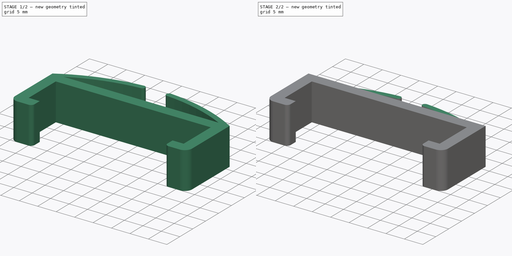
[diagram: build sequence overview — one tinted view per stage of 2, left to right]
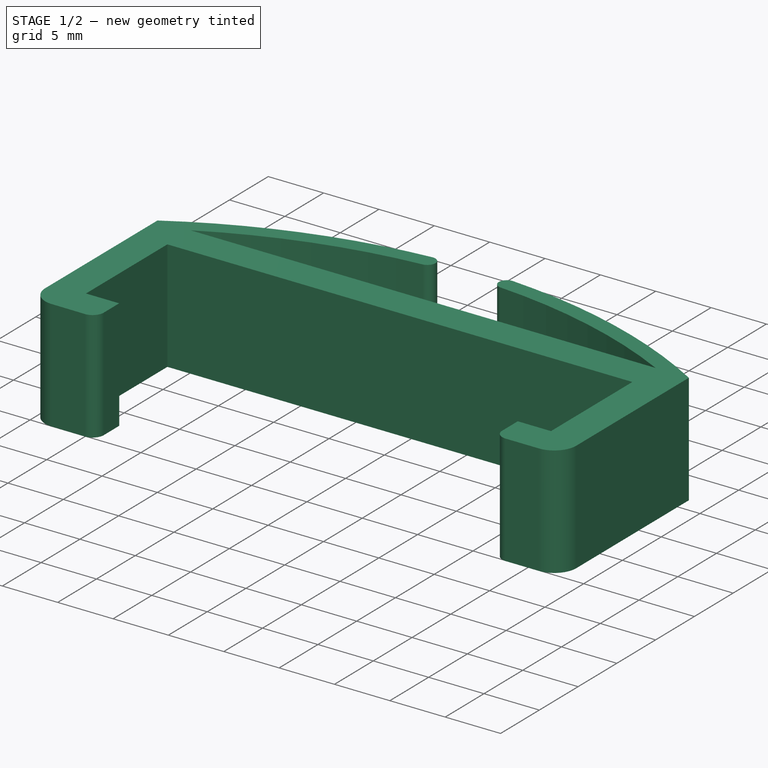
[diagram: stage 1 of 2 — iso view after this stage's code; geometry added in this stage tinted green]
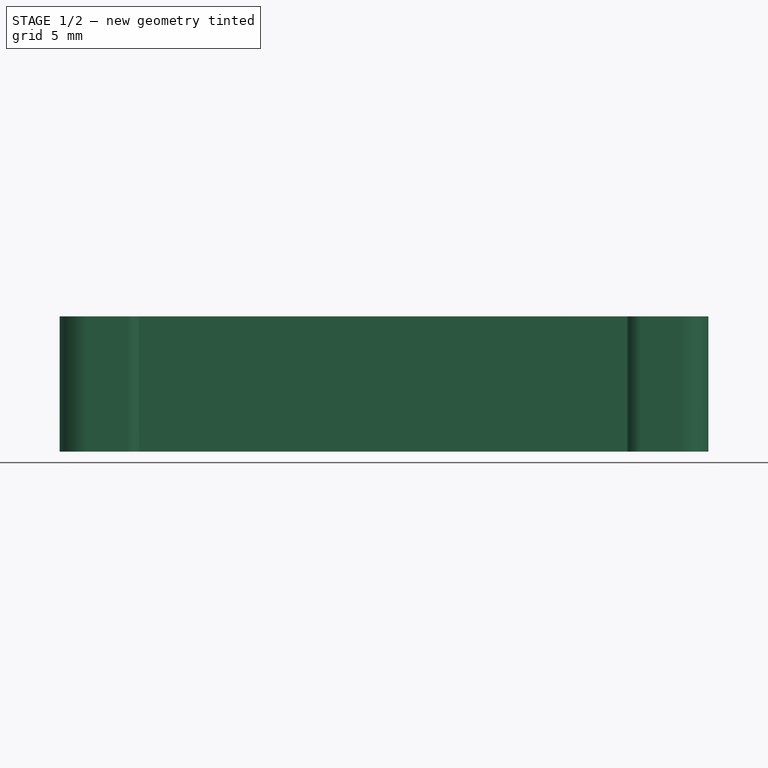
[diagram: stage 1 of 2 — front view after this stage's code; geometry added in this stage tinted green]
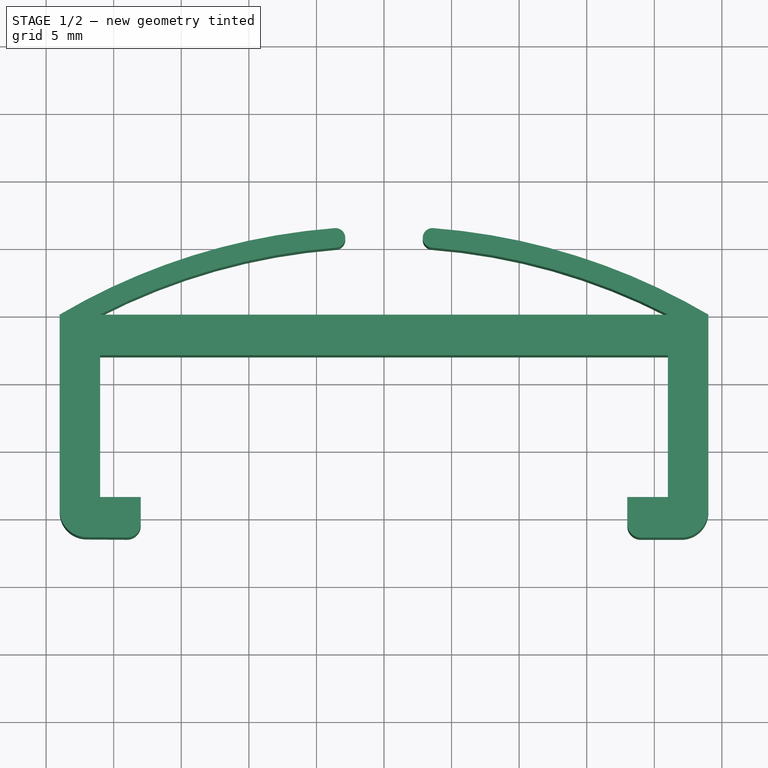
[diagram: stage 1 of 2 — top view after this stage's code; geometry added in this stage tinted green]
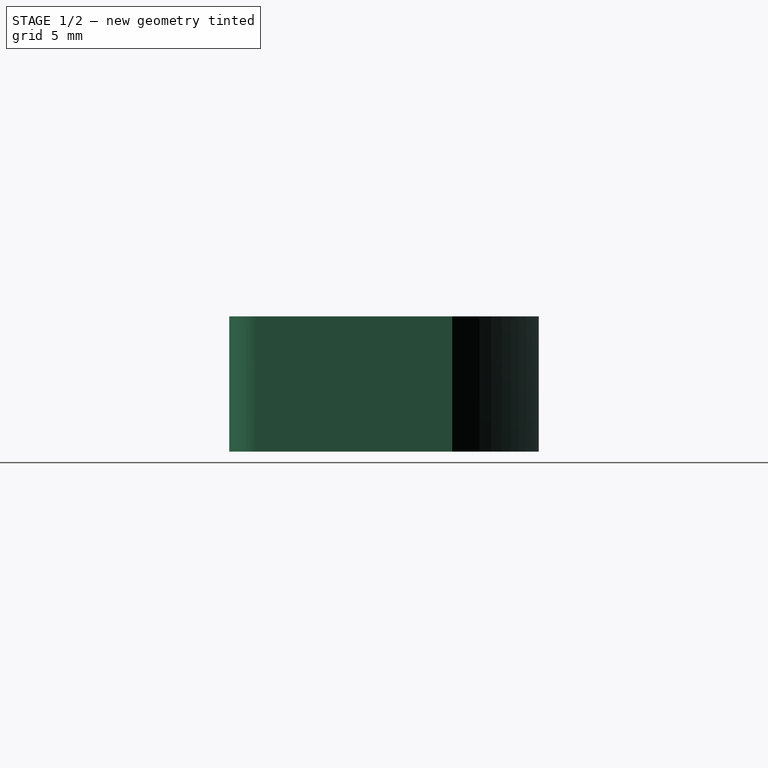
[diagram: stage 1 of 2 — right view after this stage's code; geometry added in this stage tinted green]
FCSTD DOCUMENT  (FreeCAD 0.20R27319 (Git))
Label: Friction Plate
License: All rights reserved
LicenseURL: http://en.wikipedia.org/wiki/All_rights_reserved
objects: Sketcher::SketchObject×2, PartDesign::Pad×1, PartDesign::Pocket×1, PartDesign::Body×1
note: 7 computed .brp shape members not serialized (recipe doc carries the construction recipe); baked Part::Feature solids carry a one-line shape summary decoded from their .brp

FEATURE [Sketcher::SketchObject] Sketch
  FullyConstrained = false
  MapMode = 5
  Support = -> [XY_Plane]
  sketch-geometry (30):
    g0: LineSegment StartX=-24 StartY=-7.1e-15 StartZ=0 EndX=-21 EndY=0 EndZ=0
    g1: LineSegment StartX=24 StartY=-7.1e-15 StartZ=0 EndX=24 EndY=-14.5 EndZ=0
    g2: LineSegment StartX=22 StartY=-16.5 StartZ=0 EndX=19 EndY=-16.5 EndZ=0
    g3: LineSegment StartX=18 StartY=-15.5 StartZ=0 EndX=18 EndY=-13.5 EndZ=0
    g4: LineSegment StartX=18 StartY=-13.5 StartZ=0 EndX=21 EndY=-13.5 EndZ=0
    g5: LineSegment StartX=21 StartY=-13.5 StartZ=0 EndX=21 EndY=-3 EndZ=0
    g6: LineSegment StartX=21 StartY=-3 StartZ=0 EndX=-21 EndY=-3 EndZ=0
    g7: LineSegment StartX=-21 StartY=-3 StartZ=0 EndX=-21 EndY=-13.5 EndZ=0
    g8: LineSegment StartX=-21 StartY=-13.5 StartZ=0 EndX=-18 EndY=-13.5 EndZ=0
    g9: LineSegment StartX=-18 StartY=-13.5 StartZ=0 EndX=-18 EndY=-15.4928 EndZ=0
    g10: LineSegment StartX=-19.0072 StartY=-16.4927 StartZ=0 EndX=-22.0144 EndY=-16.4711 EndZ=0
    g11: LineSegment StartX=-24 StartY=-14.4711 StartZ=0 EndX=-24 EndY=-7.1e-15 EndZ=0
    g12: ArcOfCircle CenterX=1.2e-15 CenterY=-40.7613 CenterZ=0 NormalX=0 NormalY=0 NormalZ=1 AngleXU=0 Radius=47.3021 StartAngle=1.03866 EndAngle=1.49364
    g13: ArcOfCircle CenterX=1.2e-15 CenterY=-40.7613 CenterZ=0 NormalX=0 NormalY=0 NormalZ=1 AngleXU=0 Radius=45.8529 StartAngle=1.09507 EndAngle=1.49484
    g14: LineSegment StartX=21 StartY=0 StartZ=0 EndX=24 EndY=-7.1e-15 EndZ=0
    g15: LineSegment StartX=-21 StartY=0 StartZ=0 EndX=21 EndY=0 EndZ=0
    g16: LineSegment StartX=0 StartY=0 StartZ=0 EndX=0 EndY=6.4 EndZ=0
    g17: LineSegment StartX=-3.64622 StartY=6.4 StartZ=0 EndX=3.64622 EndY=6.4 EndZ=0
    g18: ArcOfCircle CenterX=1.2e-15 CenterY=-40.7613 CenterZ=0 NormalX=0 NormalY=0 NormalZ=1 AngleXU=0 Radius=47.3021 StartAngle=1.64796 EndAngle=2.10293
    g19: ArcOfCircle CenterX=1.2e-15 CenterY=-40.7613 CenterZ=0 NormalX=0 NormalY=0 NormalZ=1 AngleXU=0 Radius=45.8529 StartAngle=1.64675 EndAngle=2.04653
    g20: ArcOfCircle CenterX=-22 CenterY=-14.4711 CenterZ=0 NormalX=0 NormalY=0 NormalZ=1 AngleXU=0 Radius=2 StartAngle=3.14159 EndAngle=4.70518
    g21: GeomPoint X=-24 Y=-16.4567 Z=0
    g22: ArcOfCircle CenterX=22 CenterY=-14.5 CenterZ=0 NormalX=0 NormalY=0 NormalZ=1 AngleXU=0 Radius=2 StartAngle=4.71239 EndAngle=6.28319
    g23: GeomPoint X=24 Y=-16.5 Z=0
    g24: ArcOfCircle CenterX=-19 CenterY=-15.4928 CenterZ=0 NormalX=0 NormalY=0 NormalZ=1 AngleXU=0 Radius=1 StartAngle=4.70518 EndAngle=6.28319
    g25: GeomPoint X=-18 Y=-16.5 Z=0
    g26: ArcOfCircle CenterX=19 CenterY=-15.5 CenterZ=0 NormalX=0 NormalY=0 NormalZ=1 AngleXU=0 Radius=1 StartAngle=3.14159 EndAngle=4.71239
    g27: GeomPoint X=18 Y=-16.5 Z=0
    g28: ArcOfCircle CenterX=-3.59028 CenterY=5.67649 CenterZ=0 NormalX=0 NormalY=0 NormalZ=1 AngleXU=0 Radius=0.725669 StartAngle=4.86576 EndAngle=7.93114
    g29: ArcOfCircle CenterX=3.59028 CenterY=5.67649 CenterZ=0 NormalX=0 NormalY=0 NormalZ=1 AngleXU=0 Radius=0.725669 StartAngle=1.49364 EndAngle=4.55901
  constraints (76):
    c: Coincident(g14,g1)
    c: Horizontal(g2)
    c: Vertical(g3)
    c: Coincident(g3,g4)
    c: Coincident(g4,g5)
    c: Coincident(g5,g6)
    c: Coincident(g6,g7)
    c: Coincident(g7,g8)
    c: Horizontal(g8)
    c: Coincident(g8,g9)
    c: Vertical(g9)
    c: Coincident(g11,g0)
    c: Vertical(g11)
    c: Vertical(g1)
    c: Horizontal(g4)
    c: Symmetric(g25,g27,g-2)
    c: Symmetric(g6,g5,g-2)
    c: Vertical(g7)
    c: Vertical(g5)
    c: Distance(g6) = 42
    c: Distance(g4) = 3
    c: DistanceX(g4,g23) = 3
    c: Symmetric(g0,g14,g-2)
    c: Distance(g7) = 10.5
    c: Distance(g9,g25) = 3
    c: DistanceY(g6,g0) = 3
    c: PointOnObject(g-1,g0)
    c: Coincident(g18,g0)
    c: Coincident(g12,g14)
    c: Coincident(g13,g12)
    c: Coincident(g0,g19)
    c: Coincident(g14,g13)
    c: Coincident(g15,g19)
    c: Coincident(g15,g13)
    c: Horizontal(g15)
    c: Equal(g15,g6)
    c: PointOnObject(g-1,g15)
    c: Coincident(g16,g-1)
    c: Vertical(g16)
    c: Distance(g16) = 6.4
    c: Horizontal(g17)
    c: PointOnObject(g17,g12)
    c: Symmetric(g19,g13,g-2)
    c: Equal(g12,g18)
    c: Coincident(g12,g18)
    c: PointOnObject(g18,g17)
    c: Coincident(g13,g19)
    c: PointOnObject(g16,g17)
    c: PointOnObject(g21,g10)
    c: PointOnObject(g21,g11)
    c: Tangent(g10,g20) = 1.5708
    c: Tangent(g11,g20) = 1.5708
    c: PointOnObject(g23,g1)
    c: PointOnObject(g23,g2)
    c: Tangent(g1,g22) = 1.5708
    c: Tangent(g2,g22) = 1.5708
    c: Equal(g20,g22)
    c: Radius(g22) = 2
    c: PointOnObject(g25,g9)
    c: PointOnObject(g25,g10)
    c: Tangent(g9,g24) = 1.5708
    c: Tangent(g10,g24) = 1.5708
    c: PointOnObject(g27,g2)
    c: PointOnObject(g27,g3)
    c: Tangent(g2,g26) = 1.5708
    c: Tangent(g3,g26) = 1.5708
    c: Equal(g24,g26)
    c: Radius(g26) = 1
    c: Coincident(g28,g19)
    c: Coincident(g29,g12)
    c: Coincident(g29,g13)
    c: Equal(g28,g29)
    c: Tangent(g28,g18) = -1.5708
    c: Coincident(g12,g17)
    c: Coincident(g17,g18)
    c: Coincident(g17,g28)
FEATURE [PartDesign::Pad] Pad
  Direction = (0,0,1)
  Length = 10
  Length2 = 10
  Profile = -> Sketch
  ReferenceAxis = -> Sketch [N_Axis]
  Type = 0
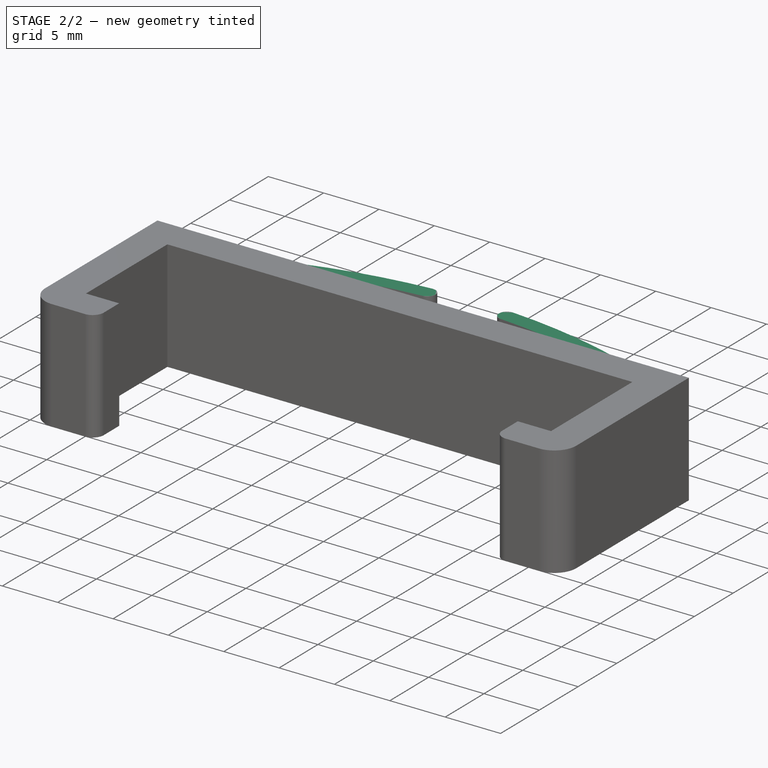
[diagram: stage 2 of 2 — iso view after this stage's code; geometry added in this stage tinted green]
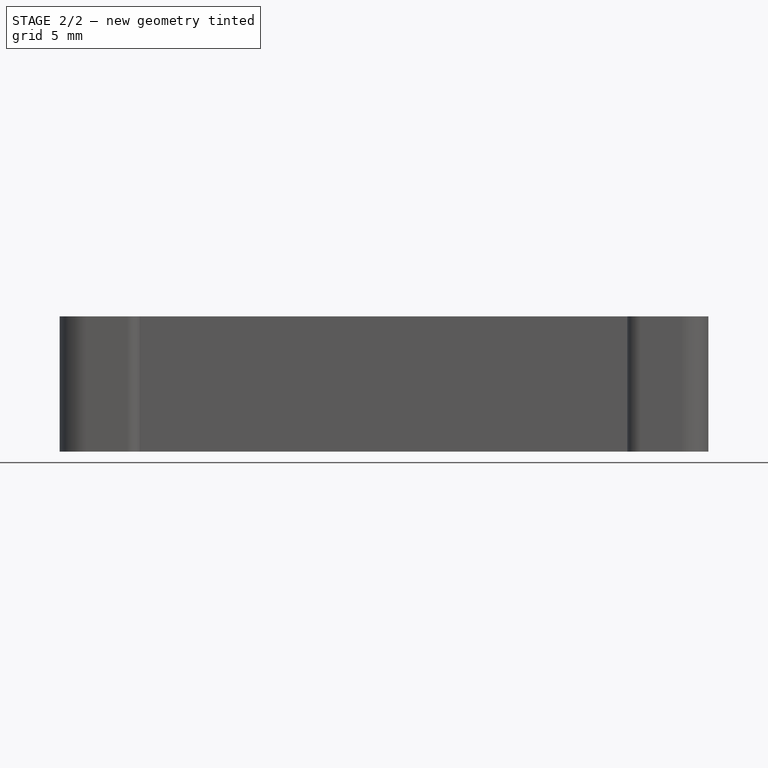
[diagram: stage 2 of 2 — front view after this stage's code; geometry added in this stage tinted green]
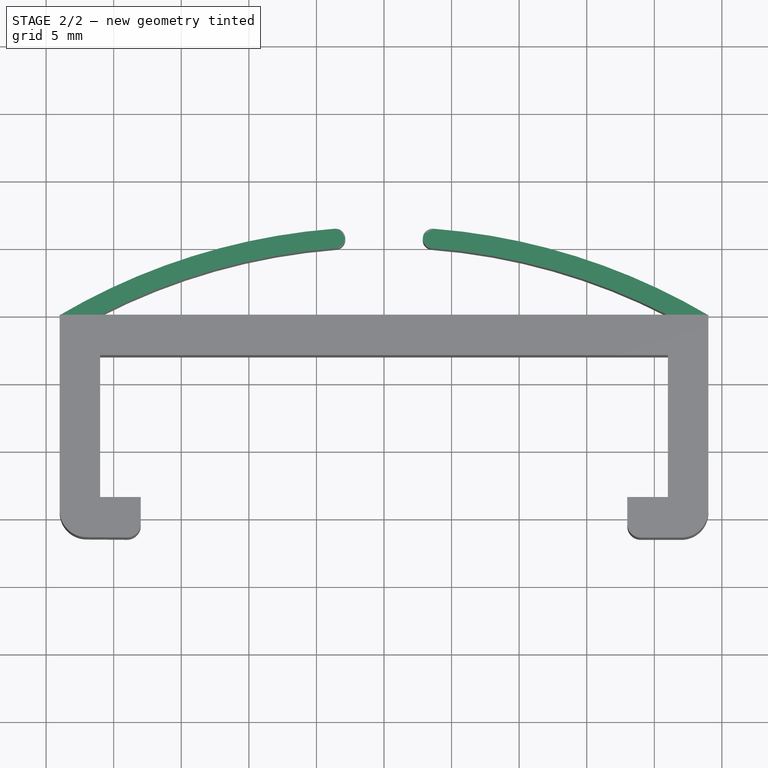
[diagram: stage 2 of 2 — top view after this stage's code; geometry added in this stage tinted green]
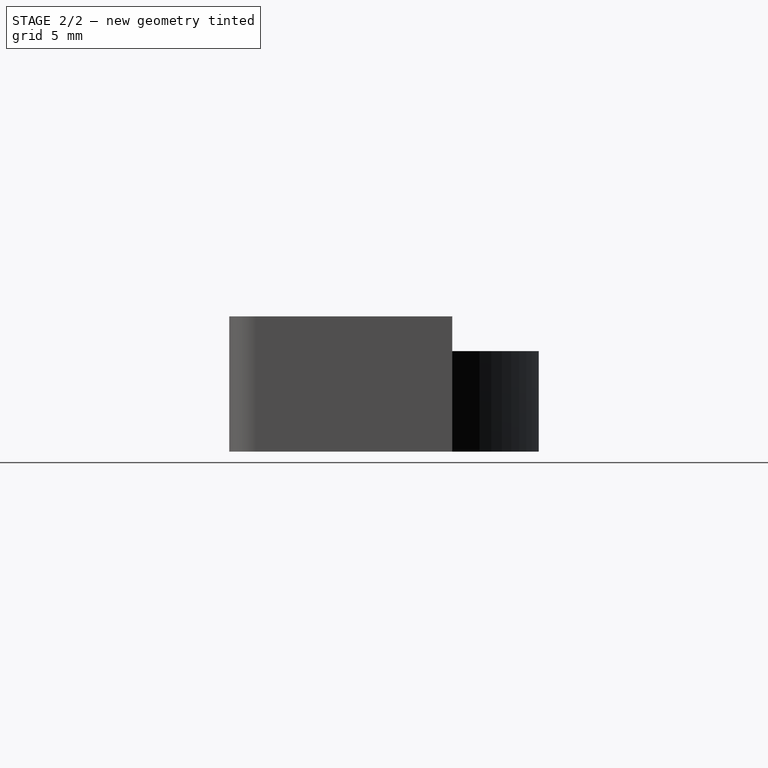
[diagram: stage 2 of 2 — right view after this stage's code; geometry added in this stage tinted green]
FEATURE [Sketcher::SketchObject] Sketch001
  FullyConstrained = false
  MapMode = 5
  Placement = pos=(-24,0,0) rot=(0.57735,-0.57735,-0.57735;2.0944rad)
  Support = -> [Pad]
  sketch-geometry (4):
    g0: LineSegment StartX=0 StartY=24.6117 StartZ=0 EndX=-9.11051 EndY=24.6117 EndZ=0
    g1: LineSegment StartX=-9.11051 StartY=24.6117 StartZ=0 EndX=-9.11051 EndY=7.43455 EndZ=0
    g2: LineSegment StartX=-9.11051 StartY=7.43455 StartZ=0 EndX=0 EndY=7.43455 EndZ=0
    g3: LineSegment StartX=0 StartY=7.43455 StartZ=0 EndX=0 EndY=24.6117 EndZ=0
  constraints (9):
    c: Coincident(g0,g1)
    c: Coincident(g1,g2)
    c: Coincident(g2,g3)
    c: Coincident(g3,g0)
    c: Horizontal(g0)
    c: Horizontal(g2)
    c: Vertical(g1)
    c: Vertical(g3)
    c: PointOnObject(g0,g-2)
FEATURE [PartDesign::Pocket] Pocket
  BaseFeature = -> Pad
  Direction = (1,0,0)
  Length = 5
  Length2 = 5
  Profile = -> Sketch001
  ReferenceAxis = -> Sketch001 [N_Axis]
  Type = 1
FEATURE [PartDesign::Body] Body
  Group = -> [Sketch,Pad,Sketch001,Pocket]
  Origin = -> Origin
  Tip = -> Pocket
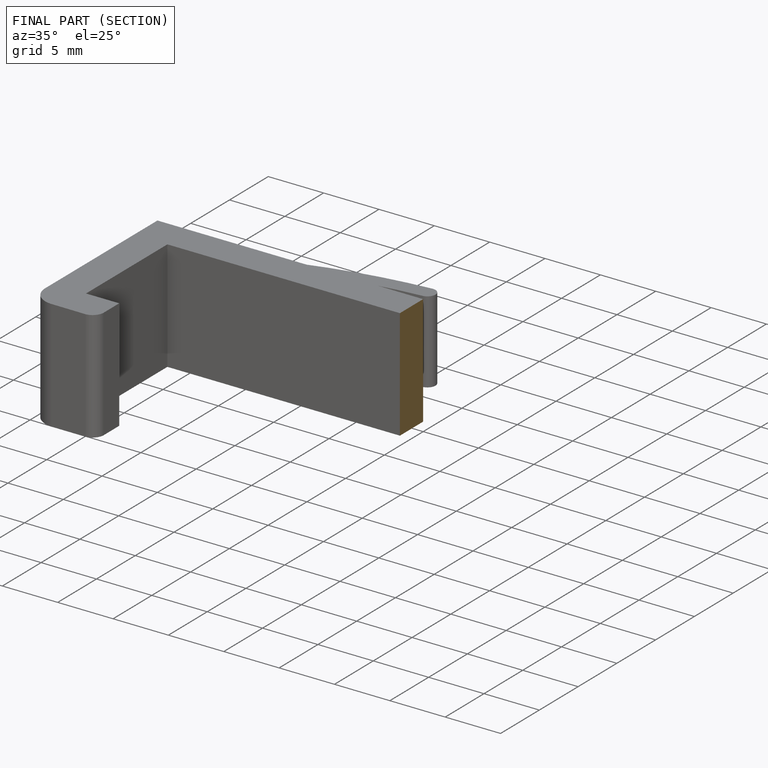
[diagram: finished part — half-section view (interior)]
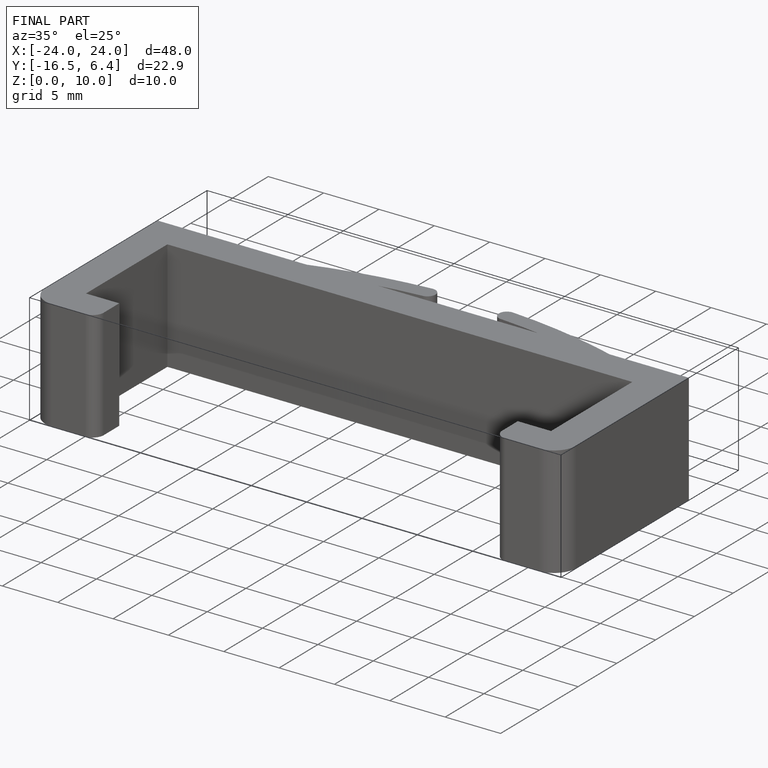
[diagram: finished part — iso view with bounding-box wireframe]
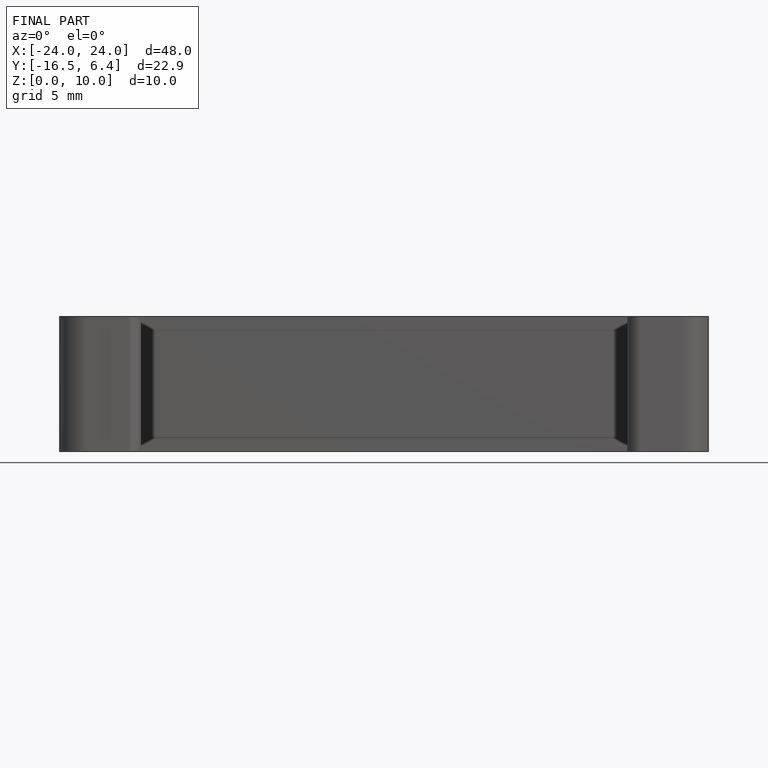
[diagram: finished part — front view with bounding-box wireframe]
